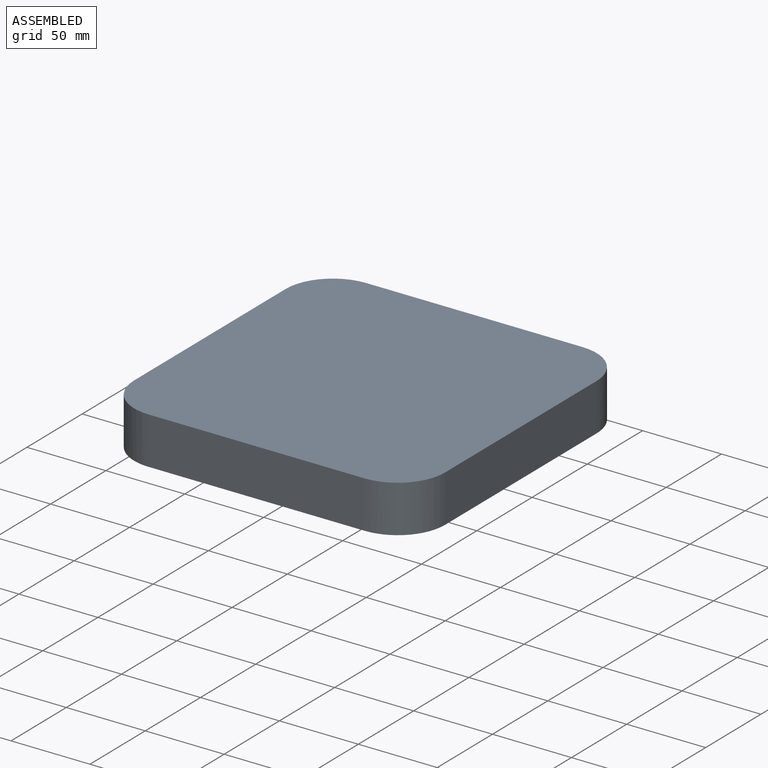
[diagram: assembled view]
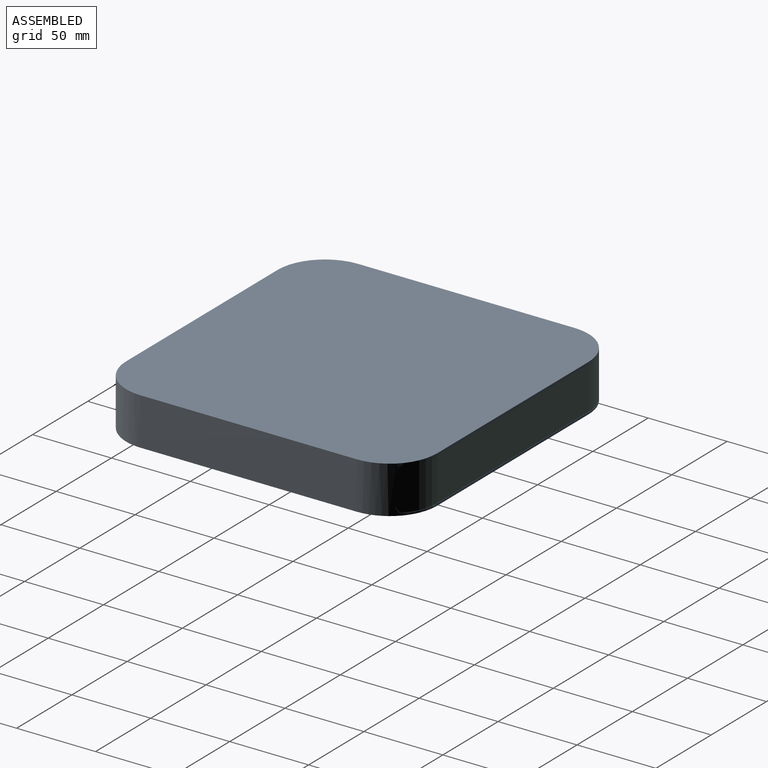
[diagram: assembled view, second angle]
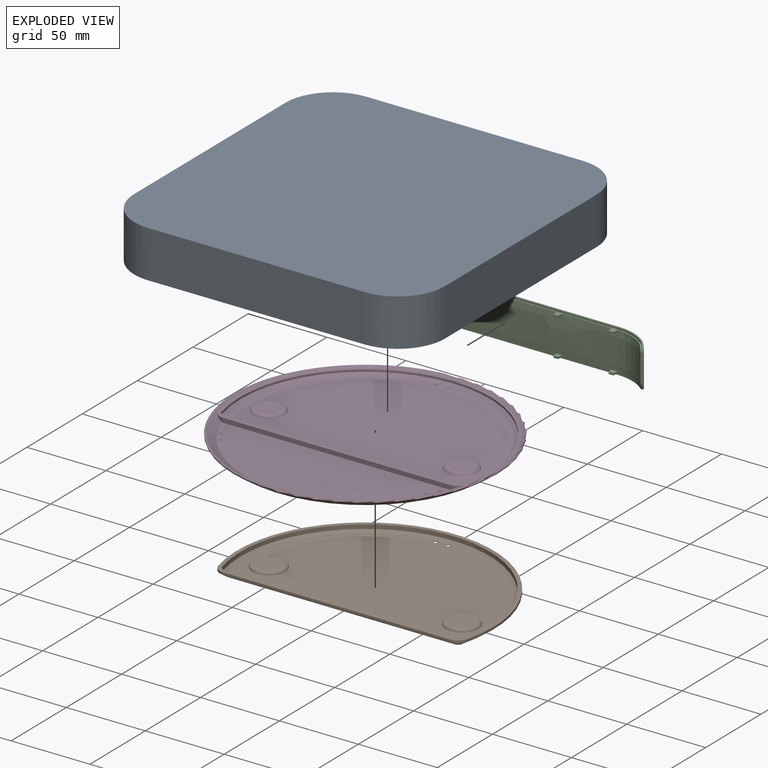
[diagram: exploded view]
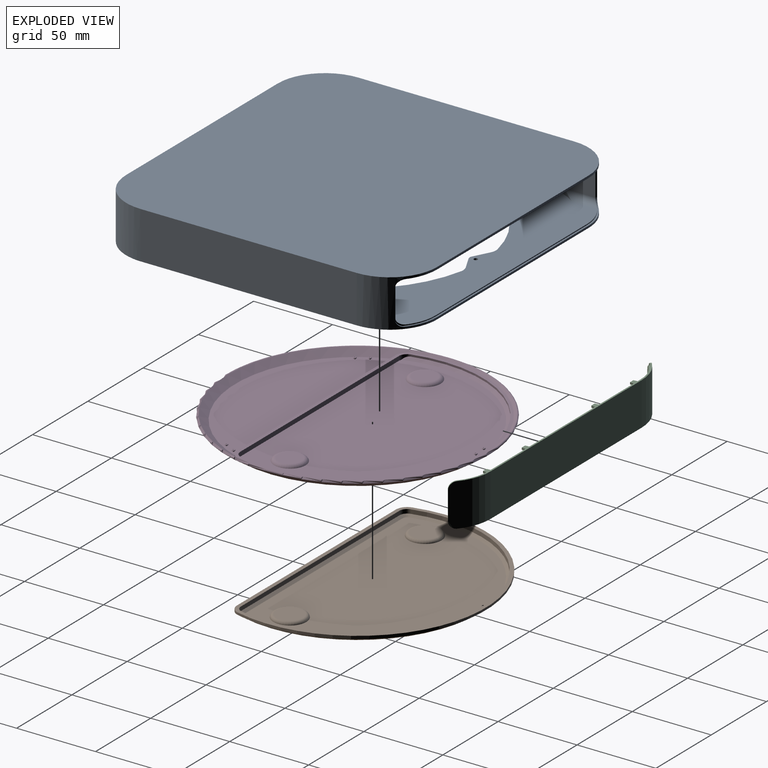
[diagram: exploded view, second angle]
ASSEMBLY  parts=4 mates=6
PART A: 59 faces, bbox 197.5x197.5x33.5 mm
  f0: plane 165x165mm, normal (0,0,-1), area 2309.4mm2, adj f41,f42,f43,f44,f45,f46,f47,f48
  f1: cylinder r=30mm len=30mm, axis (0,0,-1), area 708.1mm2, adj f2,f4,f9,f10,f13,f14,f15,f16
  f2: plane 137.51x1.81mm, normal (0,1,0), area 178.1mm2, adj f1,f3,f13,f19
  f3: cylinder r=30mm len=30mm, axis (0,0,-1), area 708.1mm2, adj f2,f4,f10,f11,f13,f17,f18,f19
  f4: plane 197x197mm, normal (0,0,1), area 36518.8mm2, adj f1,f3,f5,f6,f7,f8,f9,f10
  f5: plane 12.48x11.6mm, normal (0,0,1), area 77.9mm2, adj f4
  f6: cylinder r=30mm len=30mm, axis (0,0,-1), area 1413.7mm2, adj f4,f7,f11,f13
  f7: plane 137.51x30.51mm, normal (0,-1,0), area 4110mm2, adj f4,f6,f8,f13
  f8: cylinder r=30mm len=30mm, axis (0,0,-1), area 1413.7mm2, adj f4,f7,f9,f13
  f9: plane 137.51x30.51mm, normal (1,0,0), area 4110mm2, adj f1,f4,f8,f13
  f10: plane 137x1.4mm, normal (0,1,0), area 191.8mm2, adj f1,f3,f4,f21
  f11: plane 137.51x30.51mm, normal (-1,0,0), area 4110mm2, adj f3,f4,f6,f13
  f12: plane 44.07x42.19mm, normal (0,0,1), area 1439.4mm2, adj f4
  f13: bspline ~197x197mm, area 15468.2mm2, adj f1,f2,f3,f6,f7,f8,f9,f11
  f14: cylinder r=4.8mm len=4.8mm, axis (-0.77,-0.64,0), area 7.6mm2, adj f1,f16,f19,f25
  f15: cylinder r=4.8mm len=4.8mm, axis (0.77,0.64,0), area 7.6mm2, adj f1,f16,f21,f25
  f16: plane 17.7x0.77mm, normal (-0.64,0.77,0), area 17.7mm2, adj f1,f14,f15,f25
  f17: cylinder r=4.8mm len=4.8mm, axis (0.77,-0.64,0), area 7.6mm2, adj f3,f19,f20,f23
  f18: cylinder r=4.8mm len=4.8mm, axis (-0.77,0.64,0), area 7.6mm2, adj f3,f20,f21,f23
  f19: plane 176.32x8.03mm, normal (0,0,1), area 178.9mm2, adj f1,f2,f3,f14,f17,f23,f24,f25
  f20: plane 17.7x0.77mm, normal (0.64,0.77,0), area 17.7mm2, adj f3,f17,f18,f23
  f21: plane 176.32x8.03mm, normal (0,0,-1), area 178.9mm2, adj f1,f3,f10,f15,f18,f22,f23,f25
  f22: plane 137x0.6mm, normal (0,1,0), area 82.2mm2, adj f21,f23,f25,f35
  f23: cylinder r=29mm len=27.3mm, axis (0,0,-1), area 42.5mm2, adj f17,f18,f19,f20,f21,f22,f24,f34
  f24: plane 137x0.7mm, normal (0,1,0), area 95.9mm2, adj f19,f23,f25,f38
  f25: cylinder r=29mm len=27.3mm, axis (0,0,-1), area 42.5mm2, adj f14,f15,f16,f19,f21,f22,f24,f33
  f26: plane 112.4x26mm, normal (1,0,0), area 2922.3mm2, adj f27,f31,f35,f38
  f27: cylinder r=28mm len=28mm, axis (0,0,1), area 1143.5mm2, adj f26,f28,f35,f38
  f28: plane 137x26mm, normal (0,1,0), area 3562mm2, adj f27,f29,f35,f38
  f29: cylinder r=28mm len=28mm, axis (0,0,1), area 1143.5mm2, adj f28,f30,f35,f38
  f30: plane 112.4x26mm, normal (-1,0,0), area 2922.3mm2, adj f29,f32,f35,f38
  f31: cylinder r=55.08mm len=31.65mm, axis (0,0,1), area 705.7mm2, adj f26,f34,f35,f37,f38,f39
  f32: cylinder r=55.08mm len=31.65mm, axis (0,0,1), area 705.7mm2, adj f30,f33,f35,f36,f38,f40
  f33: cylinder r=4mm len=22.34mm, axis (0,-1,0), area 107.4mm2, adj f25,f32,f35,f40
  f34: cylinder r=4mm len=22.34mm, axis (0,1,0), area 107.4mm2, adj f23,f31,f35,f39
  f35: plane 194x193mm, normal (0,0,-1), area 36392.2mm2, adj f22,f23,f25,f26,f27,f28,f29,f30
  f36: cylinder r=4mm len=22.34mm, axis (0,1,0), area 107.4mm2, adj f25,f32,f38,f40
  f37: cylinder r=4mm len=22.34mm, axis (0,-1,0), area 107.4mm2, adj f23,f31,f38,f39
  f38: plane 194x193mm, normal (0,0,1), area 17319.1mm2, adj f23,f24,f25,f26,f27,f28,f29,f30
  f39: plane 18.5x18mm, normal (1,0,0), area 333mm2, adj f23,f31,f34,f37
  f40: plane 18.5x18mm, normal (-1,0,0), area 333mm2, adj f25,f32,f33,f36
  f41: cylinder r=79mm len=99.73mm, axis (0,0,-1), area 156.2mm2, adj f0,f38,f42,f52
  f42: plane 13.88x1.2mm, normal (0,1,0), area 16.7mm2, adj f0,f38,f41,f43
  f43: plane 26.65x1.2mm, normal (-1,0,0), area 32mm2, adj f0,f38,f42,f44
  f44: cylinder r=79mm len=123.7mm, axis (0,0,-1), area 170.5mm2, adj f0,f38,f43,f45
  f45: plane 26.65x1.2mm, normal (1,0,0), area 32mm2, adj f0,f38,f44,f46
  f46: plane 13.88x1.2mm, normal (0,1,0), area 16.7mm2, adj f0,f38,f45,f47
  f47: cylinder r=79mm len=99.73mm, axis (0,0,-1), area 156.2mm2, adj f0,f38,f46,f48
  f48: cylinder r=8mm len=5.34mm, axis (0,0,-1), area 6.6mm2, adj f0,f38,f47,f49
  f49: plane 9.91x5.09mm, normal (-0.46,-0.89,0), area 13.4mm2, adj f0,f38,f48,f50
  f50: cylinder r=3mm len=2.74mm, axis (0,0,-1), area 3.4mm2, adj f0,f38,f49,f51
  f51: plane 9.91x5.09mm, normal (0.46,-0.89,0), area 13.4mm2, adj f0,f38,f50,f52
  f52: cylinder r=8mm len=5.34mm, axis (0,0,-1), area 6.6mm2, adj f0,f38,f41,f51
  f53: cylinder r=84.5mm len=169mm, axis (0,0,1), area 690.2mm2, adj f54,f55
  f54: torus R=82.5mm, axis (0,0,1), area 1653.6mm2, adj f0,f53
  f55: cone r=85mm half-angle=45deg, axis (0,0,-1), area 376.5mm2, adj f13,f53
  f56: cylinder r=1.25mm len=2.5mm, axis (0,0,-1), area 9.4mm2, adj f0,f38
  f57: cylinder r=1.25mm len=2.5mm, axis (0,0,-1), area 9.4mm2, adj f0,f38
  f58: cylinder r=1.25mm len=2.5mm, axis (0,0,-1), area 9.4mm2, adj f0,f38
PART B: 41 faces, bbox 162.9x107.4x4.3 mm
  f0: plane 162.9x107.4mm, normal (0,0,-1), area 183.5mm2, adj f11,f14,f17,f20,f29,f32,f35,f38
  f1: torus R=8.45mm, axis (0,0,1), area 139.4mm2, adj f2,f7
  f2: plane 16.9x16.9mm, normal (0,0,-1), area 224.3mm2, adj f1
  f3: plane 154.62x99.12mm, normal (0,0,-1), area 12022.2mm2, adj f6,f7,f8,f12,f15,f18,f39,f40
  f4: torus R=8.45mm, axis (0,0,1), area 139.4mm2, adj f5,f6
  f5: plane 16.9x16.9mm, normal (0,0,-1), area 224.3mm2, adj f4
  f6: torus R=10.44mm, axis (0,0,1), area 37.7mm2, adj f3,f4
  f7: torus R=10.44mm, axis (0,0,1), area 37.7mm2, adj f1,f3
  f8: cone r=77.36mm half-angle=55.8deg, axis (0,0,1), area 740.1mm2, adj f3,f9,f12,f18
  f9: cylinder r=79.45mm len=158.9mm, axis (0,0,-1), area 698.1mm2, adj f8,f10,f13,f19
  f10: plane 162.1x106.6mm, normal (0,0,-1), area 724.1mm2, adj f9,f11,f13,f14,f16,f17,f19,f20
  f11: cylinder r=81.05mm len=162.1mm, axis (0,0,-1), area 296mm2, adj f0,f10,f14,f20
  f12: cone r=3.11mm half-angle=55.8deg, axis (0,0,1), area 14.1mm2, adj f3,f8,f13,f15
  f13: cylinder r=5.2mm len=5.03mm, axis (0,0,-1), area 16.5mm2, adj f9,f10,f12,f16
  f14: cylinder r=6.8mm len=6.58mm, axis (0,0,-1), area 8.9mm2, adj f0,f10,f11,f17
  f15: plane 143.69x2.14mm, normal (0,0.56,-0.83), area 371.5mm2, adj f3,f12,f16,f18
  f16: plane 143.69x2.41mm, normal (0,1,0), area 345.7mm2, adj f10,f13,f15,f19
  f17: plane 143.69x1mm, normal (0,-1,0), area 143.7mm2, adj f0,f10,f14,f20
  f18: cone r=3.11mm half-angle=55.8deg, axis (0,0,1), area 14.1mm2, adj f3,f8,f15,f19
  f19: cylinder r=5.2mm len=5.03mm, axis (0,0,-1), area 16.5mm2, adj f9,f10,f16,f18
  f20: cylinder r=6.8mm len=6.58mm, axis (0,0,-1), area 8.9mm2, adj f0,f10,f11,f17
  f21: torus R=8.45mm, axis (0,0,1), area 178.8mm2, adj f22,f23
  f22: plane 16.9x16.9mm, normal (0,0,1), area 224.3mm2, adj f21
  f23: plane 154.38x98.88mm, normal (0,0,1), area 11968.8mm2, adj f21,f24,f26,f30,f33,f36,f39,f40
  f24: torus R=8.45mm, axis (0,0,1), area 178.8mm2, adj f23,f25
  f25: plane 16.9x16.9mm, normal (0,0,1), area 224.3mm2, adj f24
  f26: cone r=77.14mm half-angle=55.8deg, axis (0,0,1), area 642.1mm2, adj f23,f27,f30,f36
  f27: cylinder r=79.05mm len=158.1mm, axis (0,0,-1), area 748.9mm2, adj f26,f28,f31,f37
  f28: plane 162.9x107.4mm, normal (0,0,1), area 1086.1mm2, adj f27,f29,f31,f32,f34,f35,f37,f38
  f29: cylinder r=81.45mm len=162.9mm, axis (0,0,-1), area 416.5mm2, adj f0,f28,f32,f38
  f30: cone r=2.89mm half-angle=55.8deg, axis (0,0,1), area 11.5mm2, adj f23,f26,f31,f33
  f31: cylinder r=4.8mm len=4.64mm, axis (0,0,-1), area 16.4mm2, adj f27,f28,f30,f34
  f32: cylinder r=7.2mm len=6.97mm, axis (0,0,-1), area 13.3mm2, adj f0,f28,f29,f35
  f33: plane 143.69x1.86mm, normal (0,-0.56,0.83), area 323.4mm2, adj f23,f30,f34,f36
  f34: plane 143.69x2.59mm, normal (0,-1,0), area 372.7mm2, adj f28,f31,f33,f37
  f35: plane 143.69x1.4mm, normal (0,1,0), area 201.2mm2, adj f0,f28,f32,f38
  f36: cone r=2.89mm half-angle=55.8deg, axis (0,0,1), area 11.5mm2, adj f23,f26,f33,f37
  f37: cylinder r=4.8mm len=4.64mm, axis (0,0,-1), area 16.4mm2, adj f27,f28,f34,f36
  f38: cylinder r=7.2mm len=6.97mm, axis (0,0,-1), area 13.3mm2, adj f0,f28,f29,f35
  f39: cylinder r=1.05mm len=2.1mm, axis (0,0,1), area 2.6mm2, adj f3,f23
  f40: cylinder r=1.05mm len=2.1mm, axis (0,0,1), area 2.6mm2, adj f3,f23
PART C: 76 faces, bbox 184.6x13.2x28.8 mm
  f0: bspline ~78.13x1.6mm, area 24.9mm2, adj f7,f11,f68,f72
  f1: bspline ~79.92x1.59mm, area 47.3mm2, adj f7,f11,f62,f67
  f2: bspline ~1.6x1.43mm, area 0mm2, adj f7,f30,f73
  f3: bspline ~78.13x1.6mm, area 24.9mm2, adj f7,f11,f57,f64
  f4: plane 137x1.3mm, normal (0,-1,0), area 176.5mm2, adj f5,f8,f9,f12,f18,f19,f39,f40
  f5: bspline ~78.13x1.6mm, area 24.9mm2, adj f4,f7,f49,f52
  f6: bspline ~1.6x1.43mm, area 0mm2, adj f7,f26,f54
  f7: offset ~183.48x26.59mm, area 4500.6mm2, adj f0,f1,f2,f3,f5,f6,f8,f9
  f8: bspline ~59.2x0.8mm, area 47.3mm2, adj f4,f7,f44,f47
  f9: bspline ~78.13x1.6mm, area 24.9mm2, adj f4,f7,f39,f42
  f10: bspline ~1.6x1.43mm, area 0mm2, adj f7,f33,f37
  f11: plane 137x1.4mm, normal (0,-1,0), area 188.6mm2, adj f0,f1,f3,f12,f18,f20,f57,f60
  f12: cylinder r=29mm len=27.2mm, axis (0,0,-1), area 85mm2, adj f4,f11,f13,f19,f20,f21,f22,f26
  f13: plane 17.6x0.77mm, normal (0.64,-0.77,0), area 17.6mm2, adj f12,f14,f21,f22
  f14: cylinder r=30mm len=27.2mm, axis (0,0,-1), area 689.7mm2, adj f13,f15,f19,f20,f21,f22
  f15: plane 137x27.2mm, normal (0,1,0), area 3726.4mm2, adj f14,f16,f19,f20
  f16: cylinder r=30mm len=27.2mm, axis (0,0,-1), area 689.7mm2, adj f15,f17,f19,f20,f23,f24
  f17: plane 17.6x0.77mm, normal (-0.64,-0.77,0), area 17.6mm2, adj f16,f18,f23,f24
  f18: cylinder r=29mm len=27.2mm, axis (0,0,-1), area 85mm2, adj f4,f11,f17,f19,f20,f23,f24,f31
  f19: plane 176.24x7.96mm, normal (0,0,1), area 178.9mm2, adj f4,f12,f14,f15,f16,f18,f22,f24
  f20: plane 176.24x7.96mm, normal (0,0,-1), area 178.9mm2, adj f11,f12,f14,f15,f16,f18,f21,f23
  f21: cylinder r=4.8mm len=4.8mm, axis (0.77,0.64,0), area 7.6mm2, adj f12,f13,f14,f20
  f22: cylinder r=4.8mm len=4.8mm, axis (-0.77,-0.64,0), area 7.6mm2, adj f12,f13,f14,f19
  f23: cylinder r=4.8mm len=4.8mm, axis (0.77,-0.64,0), area 7.6mm2, adj f16,f17,f18,f20
  f24: cylinder r=4.8mm len=4.8mm, axis (-0.77,0.64,0), area 7.6mm2, adj f16,f17,f18,f19
  f25: bspline ~1.6x1.43mm, area 0mm2, adj f7,f34,f58
  f26: bspline ~18.85x7.57mm, area 16.2mm2, adj f6,f7,f12,f27
  f27: bspline ~4.04x3.4mm, area 5mm2, adj f7,f12,f26,f28
  f28: bspline ~16.5x1.14mm, area 13mm2, adj f7,f12,f27,f29
  f29: bspline ~4.04x3.4mm, area 5mm2, adj f7,f12,f28,f30
  f30: bspline ~18.85x7.57mm, area 16.2mm2, adj f2,f7,f12,f29
  f31: bspline ~16.5x1.14mm, area 13mm2, adj f7,f18,f32,f35
  f32: bspline ~4.04x3.4mm, area 5mm2, adj f7,f18,f31,f33
  f33: bspline ~19.37x8.36mm, area 16.2mm2, adj f7,f10,f18,f32
  f34: bspline ~19.37x8.36mm, area 16.2mm2, adj f7,f18,f25,f35
  f35: bspline ~4.04x3.4mm, area 5mm2, adj f7,f18,f31,f34
  f36: plane 3.79x3.14mm, normal (0,0,-1), area 10.6mm2, adj f7,f37,f38,f39
  f37: plane 4x1.2mm, normal (-0.99,-0.12,0), area 3.9mm2, adj f7,f10,f18,f36,f38,f40
  f38: plane 3x1.2mm, normal (0,-1,0), area 3.6mm2, adj f36,f37,f39,f40
  f39: plane 4x1.2mm, normal (0.99,-0.12,0), area 3.9mm2, adj f4,f7,f9,f36,f38,f40
  f40: plane 4x4mm, normal (0,0,1), area 14mm2, adj f4,f37,f38,f39
  f41: plane 3.77x3.09mm, normal (0,0,-1), area 10.5mm2, adj f7,f42,f43,f44
  f42: plane 4x1.2mm, normal (-0.99,-0.12,0), area 3.9mm2, adj f4,f7,f9,f41,f43,f45
  f43: plane 3x1.2mm, normal (0,-1,0), area 3.6mm2, adj f41,f42,f44,f45
  f44: plane 4x1.2mm, normal (0.99,-0.12,0), area 3.9mm2, adj f4,f7,f8,f41,f43,f45
  f45: plane 4x4mm, normal (0,0,1), area 14mm2, adj f4,f42,f43,f44
  f46: plane 3.77x3.09mm, normal (0,0,-1), area 10.5mm2, adj f7,f47,f48,f49
  f47: plane 4x1.2mm, normal (-0.99,-0.12,0), area 3.9mm2, adj f4,f7,f8,f46,f48,f50
  f48: plane 3x1.2mm, normal (0,-1,0), area 3.6mm2, adj f46,f47,f49,f50
  f49: plane 4x1.2mm, normal (0.99,-0.12,0), area 3.9mm2, adj f4,f5,f7,f46,f48,f50
  f50: plane 4x4mm, normal (0,0,1), area 14mm2, adj f4,f47,f48,f49
  f51: plane 3.79x3.14mm, normal (0,0,-1), area 10.6mm2, adj f7,f52,f53,f54
  f52: plane 4x1.2mm, normal (-0.99,-0.12,0), area 3.9mm2, adj f4,f5,f7,f51,f53,f55
  f53: plane 3x1.2mm, normal (0,-1,0), area 3.6mm2, adj f51,f52,f54,f55
  f54: plane 4x1.2mm, normal (0.99,-0.12,0), area 3.9mm2, adj f6,f7,f12,f51,f53,f55
  f55: plane 4x4mm, normal (0,0,1), area 14mm2, adj f4,f52,f53,f54
  f56: plane 3.79x3.14mm, normal (0,0,1), area 10.6mm2, adj f7,f57,f58,f59
  f57: plane 4x1.2mm, normal (0.99,-0.12,0), area 4mm2, adj f3,f7,f11,f56,f59,f60
  f58: plane 4x1.2mm, normal (-0.99,-0.12,0), area 4mm2, adj f7,f18,f25,f56,f59,f60
  f59: plane 3x1.2mm, normal (0,-1,0), area 3.6mm2, adj f56,f57,f58,f60
  f60: plane 4x4mm, normal (0,0,-1), area 14mm2, adj f11,f57,f58,f59
  f61: plane 3.78x3.1mm, normal (0,0,1), area 10.5mm2, adj f7,f62,f63,f64
  f62: plane 4x1.2mm, normal (0.99,-0.12,0), area 3.9mm2, adj f1,f7,f11,f61,f63,f65
  f63: plane 3x1.2mm, normal (0,-1,0), area 3.6mm2, adj f61,f62,f64,f65
  f64: plane 4x1.2mm, normal (-0.99,-0.12,0), area 3.9mm2, adj f3,f7,f11,f61,f63,f65
  f65: plane 4x4mm, normal (0,0,-1), area 14mm2, adj f11,f62,f63,f64
  f66: plane 3.78x3.1mm, normal (0,0,1), area 10.5mm2, adj f7,f67,f68,f69
  f67: plane 4x1.2mm, normal (-0.99,-0.12,0), area 3.9mm2, adj f1,f7,f11,f66,f69,f70
  f68: plane 4x1.2mm, normal (0.99,-0.12,0), area 3.9mm2, adj f0,f7,f11,f66,f69,f70
  f69: plane 3x1.2mm, normal (0,-1,0), area 3.6mm2, adj f66,f67,f68,f70
  f70: plane 4x4mm, normal (0,0,-1), area 14mm2, adj f11,f67,f68,f69
  f71: plane 3.79x3.14mm, normal (0,0,1), area 10.6mm2, adj f7,f72,f73,f74
  f72: plane 4x1.2mm, normal (-0.99,-0.12,0), area 4mm2, adj f0,f7,f11,f71,f74,f75
  f73: plane 4x1.2mm, normal (0.99,-0.12,0), area 4mm2, adj f2,f7,f12,f71,f74,f75
  f74: plane 3x1.2mm, normal (0,-1,0), area 3.6mm2, adj f71,f72,f73,f75
  f75: plane 4x4mm, normal (0,0,-1), area 14mm2, adj f11,f72,f73,f74
PART D: 158 faces, bbox 181.4x181.4x5.8 mm
  f0: plane 154.52x101.21mm, normal (0,0,-1), area 12389.3mm2, adj f8,f12,f16,f36,f37,f38,f152,f156
  f1: cylinder r=8.9mm len=17.8mm, axis (0,0,1), area 28mm2, adj f3,f155
  f2: cylinder r=8.9mm len=17.8mm, axis (0,0,1), area 28mm2, adj f3,f151
  f3: plane 155.5x155.5mm, normal (0,0,1), area 18255.1mm2, adj f1,f2,f6,f41,f42,f43,f44,f45
  f4: cone r=82.55mm half-angle=55.8deg, axis (0,0,-1), area 1755.2mm2, adj f5,f7,f33,f35,f40
  f5: plane 145.58x51.37mm, normal (0,0,-1), area 5439.8mm2, adj f4,f20,f24,f28,f32,f33,f34,f35
  f6: cone r=77.75mm half-angle=55.8deg, axis (0,0,-1), area 3488.2mm2, adj f3,f7
  f7: torus R=83mm, axis (0,0,-1), area 1317.3mm2, adj f4,f6
  f8: cone r=82.55mm half-angle=55.8deg, axis (0,0,-1), area 774.1mm2, adj f0,f36,f38,f39
  f9: plane 2x2mm, normal (0,0,1), area 2.4mm2, adj f10,f12
  f10: torus R=0.5mm, axis (0,0,1), area 4mm2, adj f9,f11
  f11: cone r=0.5mm half-angle=45deg, axis (0,0,-1), area 1.1mm2, adj f10
  f12: cylinder r=0.5mm len=1mm, axis (0,0,1), area 1.6mm2, adj f0,f9
  f13: plane 2x2mm, normal (0,0,1), area 2.4mm2, adj f14,f16
  f14: torus R=0.5mm, axis (0,0,1), area 4mm2, adj f13,f15
  f15: cone r=0.5mm half-angle=45deg, axis (0,0,-1), area 1.1mm2, adj f14
  f16: cylinder r=0.5mm len=1mm, axis (0,0,1), area 1.6mm2, adj f0,f13
  f17: plane 2x2mm, normal (0,0,1), area 2.4mm2, adj f18,f20
  f18: torus R=0.5mm, axis (0,0,1), area 4mm2, adj f17,f19
  f19: cone r=0.5mm half-angle=45deg, axis (0,0,-1), area 1.1mm2, adj f18
  f20: cylinder r=0.5mm len=1mm, axis (0,0,1), area 1.6mm2, adj f5,f17
  f21: plane 2x2mm, normal (0,0,1), area 2.4mm2, adj f22,f24
  f22: torus R=0.5mm, axis (0,0,1), area 4mm2, adj f21,f23
  f23: cone r=0.5mm half-angle=45deg, axis (0,0,-1), area 1.1mm2, adj f22
  f24: cylinder r=0.5mm len=1mm, axis (0,0,1), area 1.6mm2, adj f5,f21
  f25: plane 2x2mm, normal (0,0,1), area 2.4mm2, adj f26,f28
  f26: torus R=0.5mm, axis (0,0,1), area 4mm2, adj f25,f27
  f27: cone r=0.5mm half-angle=45deg, axis (0,0,-1), area 1.1mm2, adj f26
  f28: cylinder r=0.5mm len=1mm, axis (0,0,1), area 1.6mm2, adj f5,f25
  f29: plane 2x2mm, normal (0,0,1), area 2.4mm2, adj f30,f32
  f30: torus R=0.5mm, axis (0,0,1), area 4mm2, adj f29,f31
  f31: cone r=0.5mm half-angle=45deg, axis (0,0,-1), area 1.1mm2, adj f30
  f32: cylinder r=0.5mm len=1mm, axis (0,0,1), area 1.6mm2, adj f5,f29
  f33: cylinder r=7.2mm len=6.38mm, axis (0,0,-1), area 10.1mm2, adj f4,f5,f34,f40
  f34: plane 143.69x2.73mm, normal (0,1,0), area 392.3mm2, adj f5,f33,f35,f40
  f35: cylinder r=7.2mm len=6.38mm, axis (0,0,-1), area 10.1mm2, adj f4,f5,f34,f40
  f36: cylinder r=5.2mm len=5.03mm, axis (0,0,-1), area 13.7mm2, adj f0,f8,f37,f39,f40
  f37: plane 143.69x2.73mm, normal (0,-1,0), area 392.3mm2, adj f0,f36,f38,f40
  f38: cylinder r=5.2mm len=5.03mm, axis (0,0,-1), area 13.7mm2, adj f0,f8,f37,f39,f40
  f39: cylinder r=79.45mm len=158.9mm, axis (0,0,-1), area 360.5mm2, adj f8,f36,f38,f40
  f40: plane 162.56x107.23mm, normal (0,0,-1), area 857mm2, adj f4,f33,f34,f35,f36,f37,f38,f39
  f41: plane 1.47x0.2mm, normal (0,1,0), area 0.3mm2, adj f3,f42,f62,f63
  f42: plane 8.03x0.2mm, normal (1,0,0), area 1.6mm2, adj f3,f41,f43,f63
  f43: extruded ~2.39x0.2mm, area 0.5mm2, adj f3,f42,f44,f63
  f44: plane 0.2x0.04mm, normal (0,1,0), area 0mm2, adj f3,f43,f45,f63
  f45: extruded ~1.22x0.36mm, area 0.3mm2, adj f3,f44,f46,f63
  f46: plane 9.2x3.98mm, normal (-0.92,0.4,0), area 2mm2, adj f3,f45,f47,f63
  f47: plane 0.88x0.2mm, normal (0,1,0), area 0.2mm2, adj f3,f46,f48,f63
  f48: plane 9.13x3.9mm, normal (0.92,0.39,0), area 2mm2, adj f3,f47,f49,f63
  f49: extruded ~1.29x0.35mm, area 0.3mm2, adj f3,f48,f50,f63
  f50: plane 0.2x0.05mm, normal (0,1,0), area 0mm2, adj f3,f49,f51,f63
  f51: extruded ~2.46x0.2mm, area 0.5mm2, adj f3,f50,f52,f63
  f52: plane 7.96x0.2mm, normal (-1,0,0), area 1.6mm2, adj f3,f51,f53,f63
  f53: plane 1.47x0.2mm, normal (0,1,0), area 0.3mm2, adj f3,f52,f54,f63
  f54: plane 12.03x0.2mm, normal (1,0,0), area 2.4mm2, adj f3,f53,f55,f63
  f55: plane 2.05x0.2mm, normal (0,-1,0), area 0.4mm2, adj f3,f54,f56,f63
  f56: plane 8.21x3.56mm, normal (-0.92,-0.4,0), area 1.8mm2, adj f3,f55,f57,f63
  f57: extruded ~1.47x0.54mm, area 0.3mm2, adj f3,f56,f58,f63
  f58: plane 0.2x0.06mm, normal (0,-1,0), area 0mm2, adj f3,f57,f59,f63
  f59: extruded ~1.5x0.57mm, area 0.3mm2, adj f3,f58,f60,f63
  f60: plane 8.18x3.64mm, normal (0.91,-0.41,0), area 1.8mm2, adj f3,f59,f61,f63
  f61: plane 1.91x0.2mm, normal (0,-1,0), area 0.4mm2, adj f3,f60,f62,f63
  f62: plane 12.03x0.2mm, normal (-1,0,0), area 2.4mm2, adj f3,f41,f61,f63
  f63: plane 12.32x12.03mm, normal (0,0,1), area 66.1mm2, adj f41,f42,f43,f44,f45,f46,f47,f48
  f64: plane 1.47x0.2mm, normal (1,0,0), area 0.3mm2, adj f3,f65,f76,f77
  f65: extruded ~2.93x0.88mm, area 0.6mm2, adj f3,f64,f66,f77
  f66: extruded ~3.21x3.08mm, area 1mm2, adj f3,f65,f67,f77
  f67: plane 5.45x0.2mm, normal (-1,0,0), area 1.1mm2, adj f3,f66,f68,f77
  f68: plane 1.47x0.2mm, normal (0,1,0), area 0.3mm2, adj f3,f67,f69,f77
  f69: plane 1.47x0.2mm, normal (1,0,0), area 0.3mm2, adj f3,f68,f70,f77
  f70: plane 0.2x0.04mm, normal (0,1,0), area 0mm2, adj f3,f69,f71,f77
  f71: extruded ~2.65x1.61mm, area 0.7mm2, adj f3,f70,f72,f77
  f72: extruded ~2.74x2.45mm, area 0.8mm2, adj f3,f71,f73,f77
  f73: extruded ~2.87x2.74mm, area 0.9mm2, adj f3,f72,f74,f77
  f74: plane 2.56x0.35mm, normal (0.14,-0.99,0), area 0.5mm2, adj f3,f73,f75,f77
  f75: extruded ~1.94x1.74mm, area 0.6mm2, adj f3,f74,f76,f77
  f76: extruded ~2.81x1.03mm, area 0.6mm2, adj f3,f64,f75,f77
  f77: plane 8.8x6.9mm, normal (0,0,1), area 33.2mm2, adj f64,f65,f66,f67,f68,f69,f70,f71
  f78: plane 1.98x0.27mm, normal (-0.14,0.99,0), area 0.4mm2, adj f77,f79,f82,f83
  f79: plane 0.77x0.2mm, normal (1,0,0), area 0.2mm2, adj f77,f78,f80,f83
  f80: extruded ~2.3x2.25mm, area 0.7mm2, adj f77,f79,f81,f83
  f81: extruded ~1.56x1.3mm, area 0.5mm2, adj f77,f80,f82,f83
  f82: extruded ~1.83x1.51mm, area 0.5mm2, adj f77,f78,f81,f83
  f83: plane 3.82x3.07mm, normal (0,0,1), area 9mm2, adj f78,f79,f80,f81,f82
  f84: plane 1.32x0.2mm, normal (-1,0,0), area 0.3mm2, adj f3,f85,f93,f94
  f85: extruded ~2.36x0.73mm, area 0.5mm2, adj f3,f84,f86,f94
  f86: extruded ~4.2x4.1mm, area 1.3mm2, adj f3,f85,f87,f94
  f87: extruded ~4.6x4.45mm, area 1.4mm2, adj f3,f86,f88,f94
  f88: extruded ~2x0.44mm, area 0.4mm2, adj f3,f87,f89,f94
  f89: plane 1.47x0.2mm, normal (-1,0,0), area 0.3mm2, adj f3,f88,f90,f94
  f90: extruded ~1.97x0.59mm, area 0.4mm2, adj f3,f89,f91,f94
  f91: extruded ~3.15x2.87mm, area 1mm2, adj f3,f90,f92,f94
  f92: extruded ~3.01x2.79mm, area 0.9mm2, adj f3,f91,f93,f94
  f93: extruded ~2.05x0.73mm, area 0.4mm2, adj f3,f84,f92,f94
  f94: plane 8.8x6.46mm, normal (0,0,1), area 23.1mm2, adj f84,f85,f86,f87,f88,f89,f90,f91
  f95: plane 5.22x0.2mm, normal (-1,0,0), area 1mm2, adj f3,f96,f114,f115
  f96: plane 1.47x0.2mm, normal (0,1,0), area 0.3mm2, adj f3,f95,f97,f115
  f97: plane 4.8x0.2mm, normal (1,0,0), area 1mm2, adj f3,f96,f98,f115
  f98: extruded ~2.53x1.89mm, area 0.7mm2, adj f3,f97,f99,f115
  f99: extruded ~2.57x2.07mm, area 0.7mm2, adj f3,f98,f100,f115
  f100: plane 4.76x0.2mm, normal (-1,0,0), area 1mm2, adj f3,f99,f101,f115
  f101: plane 1.47x0.2mm, normal (0,1,0), area 0.3mm2, adj f3,f100,f102,f115
  f102: plane 4.95x0.2mm, normal (1,0,0), area 1mm2, adj f3,f101,f103,f115
  f103: extruded ~2.38x1.92mm, area 0.7mm2, adj f3,f102,f104,f115
  f104: extruded ~2.58x2.05mm, area 0.7mm2, adj f3,f103,f105,f115
  f105: plane 4.76x0.2mm, normal (-1,0,0), area 1mm2, adj f3,f104,f106,f115
  f106: plane 1.47x0.2mm, normal (0,1,0), area 0.3mm2, adj f3,f105,f107,f115
  f107: plane 8.51x0.2mm, normal (1,0,0), area 1.7mm2, adj f3,f106,f108,f115
  f108: plane 1.47x0.2mm, normal (0,-1,0), area 0.3mm2, adj f3,f107,f109,f115
  f109: plane 1.48x0.2mm, normal (-1,0,0), area 0.3mm2, adj f3,f108,f110,f115
  f110: plane 0.2x0.03mm, normal (0,-1,0), area 0mm2, adj f3,f109,f111,f115
  f111: extruded ~2.69x1.62mm, area 0.7mm2, adj f3,f110,f112,f115
  f112: extruded ~2.45x1.82mm, area 0.7mm2, adj f3,f111,f113,f115
  f113: extruded ~2.86x1.82mm, area 0.7mm2, adj f3,f112,f114,f115
  f114: extruded ~3.44x2.83mm, area 1mm2, adj f3,f95,f113,f115
  f115: plane 12.32x8.66mm, normal (0,0,1), area 46.5mm2, adj f95,f96,f97,f98,f99,f100,f101,f102
  f116: extruded ~0.95x0.94mm, area 0.3mm2, adj f3,f117,f119,f120
  f117: extruded ~0.96x0.94mm, area 0.3mm2, adj f3,f116,f118,f120
  f118: extruded ~0.97x0.96mm, area 0.3mm2, adj f3,f117,f119,f120
  f119: extruded ~0.97x0.95mm, area 0.3mm2, adj f3,f116,f118,f120
  f120: plane 1.91x1.91mm, normal (0,0,1), area 2.9mm2, adj f116,f117,f118,f119
  f121: plane 1.47x0.2mm, normal (0,1,0), area 0.3mm2, adj f3,f122,f124,f125
  f122: plane 8.51x0.2mm, normal (1,0,0), area 1.7mm2, adj f3,f121,f123,f125
  f123: plane 1.47x0.2mm, normal (0,-1,0), area 0.3mm2, adj f3,f122,f124,f125
  f124: plane 8.51x0.2mm, normal (-1,0,0), area 1.7mm2, adj f3,f121,f123,f125
  f125: plane 8.51x1.47mm, normal (0,0,1), area 12.5mm2, adj f121,f122,f123,f124
  f126: plane 5.17x0.2mm, normal (-1,0,0), area 1mm2, adj f3,f127,f138,f139
  f127: plane 1.47x0.2mm, normal (0,1,0), area 0.3mm2, adj f3,f126,f128,f139
  f128: plane 4.76x0.2mm, normal (1,0,0), area 1mm2, adj f3,f127,f129,f139
  f129: extruded ~2.58x1.95mm, area 0.7mm2, adj f3,f128,f130,f139
  f130: extruded ~2.56x2.31mm, area 0.8mm2, adj f3,f129,f131,f139
  f131: plane 4.77x0.2mm, normal (-1,0,0), area 1mm2, adj f3,f130,f132,f139
  f132: plane 1.47x0.2mm, normal (0,1,0), area 0.3mm2, adj f3,f131,f133,f139
  f133: plane 8.51x0.2mm, normal (1,0,0), area 1.7mm2, adj f3,f132,f134,f139
  f134: plane 1.47x0.2mm, normal (0,-1,0), area 0.3mm2, adj f3,f133,f135,f139
  f135: plane 1.54x0.2mm, normal (-1,0,0), area 0.3mm2, adj f3,f134,f136,f139
  f136: plane 0.2x0.03mm, normal (0,-1,0), area 0mm2, adj f3,f135,f137,f139
  f137: extruded ~2.81x1.69mm, area 0.7mm2, adj f3,f136,f138,f139
  f138: extruded ~3.49x2.88mm, area 1mm2, adj f3,f126,f137,f139
  f139: plane 8.66x7.19mm, normal (0,0,1), area 29.7mm2, adj f126,f127,f128,f129,f130,f131,f132,f133
  f140: extruded ~0.95x0.94mm, area 0.3mm2, adj f3,f141,f143,f144
  f141: extruded ~0.96x0.94mm, area 0.3mm2, adj f3,f140,f142,f144
  f142: extruded ~0.97x0.96mm, area 0.3mm2, adj f3,f141,f143,f144
  f143: extruded ~0.97x0.95mm, area 0.3mm2, adj f3,f140,f142,f144
  f144: plane 1.91x1.91mm, normal (0,0,1), area 2.9mm2, adj f140,f141,f142,f143
  f145: plane 1.47x0.2mm, normal (0,1,0), area 0.3mm2, adj f3,f146,f148,f149
  f146: plane 8.51x0.2mm, normal (1,0,0), area 1.7mm2, adj f3,f145,f147,f149
  f147: plane 1.47x0.2mm, normal (0,-1,0), area 0.3mm2, adj f3,f146,f148,f149
  f148: plane 8.51x0.2mm, normal (-1,0,0), area 1.7mm2, adj f3,f145,f147,f149
  f149: plane 8.51x1.47mm, normal (0,0,1), area 12.5mm2, adj f145,f146,f147,f148
  f150: plane 14.8x14.8mm, normal (0,0,1), area 172mm2, adj f151
  f151: torus R=7.4mm, axis (0,0,1), area 123.7mm2, adj f2,f150
  f152: torus R=7.4mm, axis (0,0,1), area 181.8mm2, adj f0,f153
  f153: plane 14.8x14.8mm, normal (0,0,-1), area 172mm2, adj f152
  f154: plane 14.8x14.8mm, normal (0,0,1), area 172mm2, adj f155
  f155: torus R=7.4mm, axis (0,0,1), area 123.7mm2, adj f1,f154
  f156: torus R=7.4mm, axis (0,0,1), area 181.8mm2, adj f0,f157
  f157: plane 14.8x14.8mm, normal (0,0,-1), area 172mm2, adj f156
PLACE A t=(3.92,-6.38,-11.46)mm fixed
PLACE B rot(axis=(0,0,1),180deg) t=(3.92,-6.38,-29.72)mm
PLACE C t=(3.92,79.78,-11.46)mm
PLACE D rot(axis=(1,0,0),180deg) t=(3.92,-6.38,-26.09)mm
MATE slider D.f4 <-> A.f53  axis (0,0,1) through (3.92,-6.38,-29.49)mm
MATE cylindrical B.f4 <-> D.f155  axis (0,0,-1) through (-57.23,-6.38,-28.12)mm
MATE planar A.f10 <-> C.f15  axis (0,1,0) through (3.92,92.12,2.84)mm
MATE planar C.f17 <-> A.f20  axis (-0.64,-0.77,0) through (-87.2,81.06,-11.46)mm
MATE planar B.f28 <-> A.f0  axis (0,0,1) through (-67.93,-32.33,-25.66)mm
MATE planar C.f19 <-> A.f21  axis (0,0,1) through (3.92,91.05,2.14)mm
